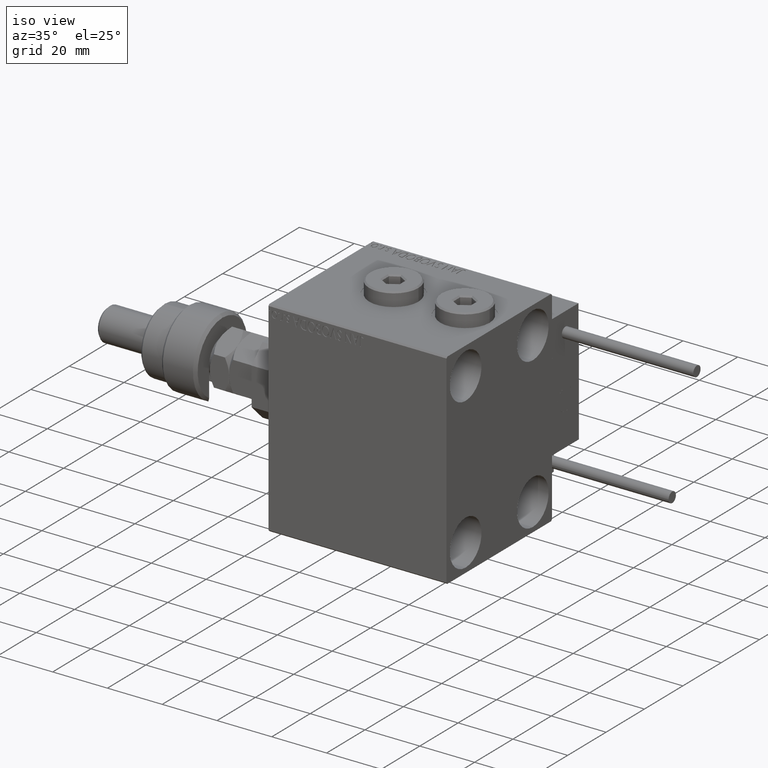
[diagram: clean part render]
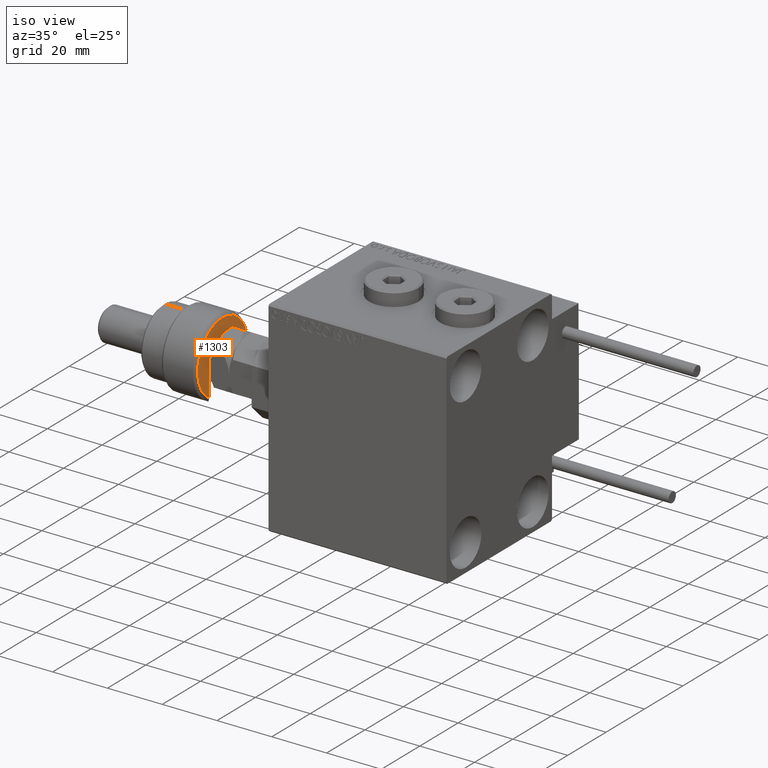
[diagram: same view with one face highlighted and labeled with its STEP entity id]
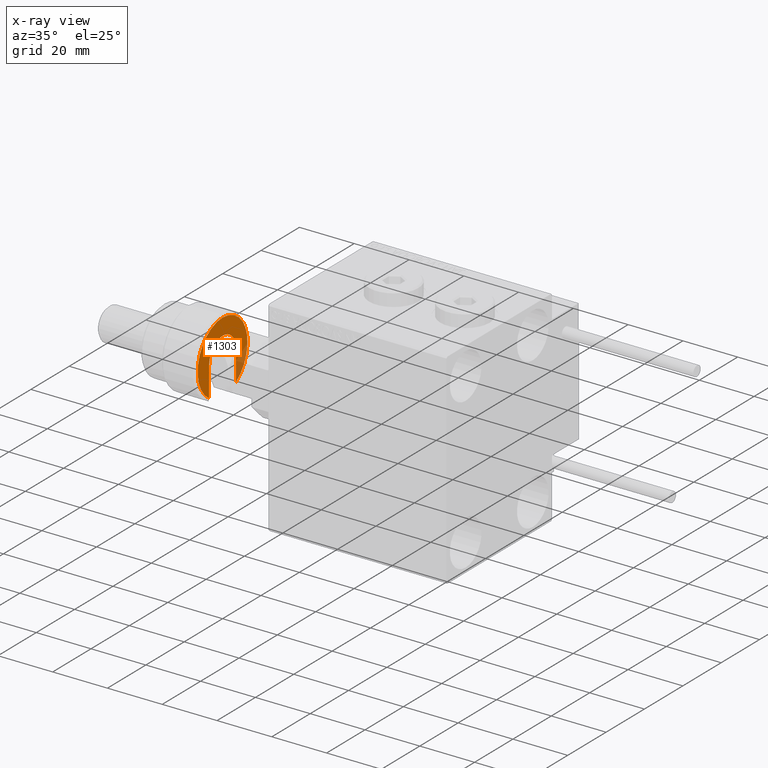
[diagram: x-ray of the same camera — body ghosted, the highlighted face saturated]
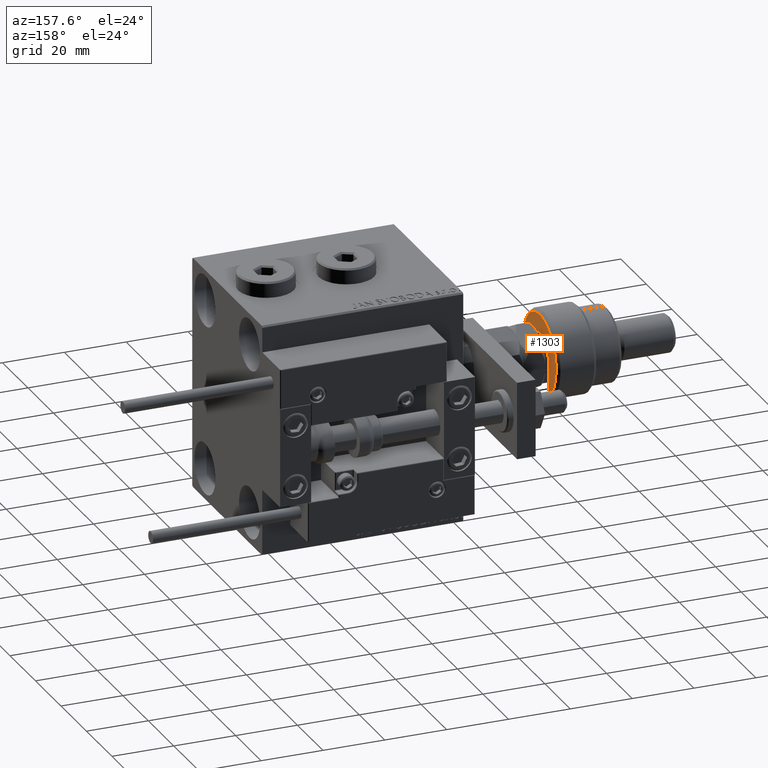
[diagram: same view with one face highlighted and labeled with its STEP entity id]
A machine part, iso view. The second image highlights one B-rep face of the part: STEP entity #1303.
The next image is the same camera in x-ray: the body ghosted, the highlighted face saturated — about 12% of this face is hidden behind the body in this view.
A second angle (auxiliary view) of the same face is appended — the face is thin or edge-on in the first view.
In plain terms, the highlighted planar face has unit normal (-1, 0, 0).
Its self-contained STEP definition (entity closure, byte-faithful):
#922 = CARTESIAN_POINT ( 'NONE',  ( 0.000000000000000000, 0.000000000000000000, 0.000000000000000000 ) ) ;
#1303 = ADVANCED_FACE ( 'NONE', ( #11438 ), #49019, .F. ) ;
#2015 = ORIENTED_EDGE ( 'NONE', *, *, #4010, .T. ) ;
#3674 = EDGE_CURVE ( 'NONE', #44960, #30648, #11032, .T. ) ;
#4010 = EDGE_CURVE ( 'NONE', #23486, #13555, #35587, .T. ) ;
#4116 = CARTESIAN_POINT ( 'NONE',  ( 0.000000000000000000, -7.000000000000007994, 0.000000000000000000 ) ) ;
#4891 = EDGE_CURVE ( 'NONE', #13555, #44960, #20782, .T. ) ;
#7927 = ORIENTED_EDGE ( 'NONE', *, *, #33913, .T. ) ;
#10903 = AXIS2_PLACEMENT_3D ( 'NONE', #48746, #48469, #44367 ) ;
#11032 = CIRCLE ( 'NONE', #50460, 12.99999999999997868 ) ;
#11438 = FACE_OUTER_BOUND ( 'NONE', #42994, .T. ) ;
#13555 = VERTEX_POINT ( 'NONE', #28711 ) ;
#17074 = DIRECTION ( 'NONE',  ( 1.000000000000000000, 0.000000000000000000, 0.000000000000000000 ) ) ;
#17199 = VECTOR ( 'NONE', #37777, 1000.000000000000000 ) ;
#17733 = DIRECTION ( 'NONE',  ( 1.000000000000000000, 0.000000000000000000, 0.000000000000000000 ) ) ;
#20662 = CARTESIAN_POINT ( 'NONE',  ( 0.000000000000000000, -7.000000000000007994, 0.000000000000000000 ) ) ;
#20782 = LINE ( 'NONE', #50673, #17199 ) ;
#21572 = ORIENTED_EDGE ( 'NONE', *, *, #3674, .T. ) ;
#22066 = DIRECTION ( 'NONE',  ( 1.000000000000000000, 0.000000000000000000, 0.000000000000000000 ) ) ;
#23486 = VERTEX_POINT ( 'NONE', #4116 ) ;
#25511 = CARTESIAN_POINT ( 'NONE',  ( 0.000000000000000000, 0.000000000000000000, 0.000000000000000000 ) ) ;
#25651 = VERTEX_POINT ( 'NONE', #53304 ) ;
#27522 = CIRCLE ( 'NONE', #32025, 12.99999999999997868 ) ;
#28711 = CARTESIAN_POINT ( 'NONE',  ( 0.000000000000000000, 7.000000000000007994, 0.000000000000000000 ) ) ;
#30648 = VERTEX_POINT ( 'NONE', #48604 ) ;
#31205 = AXIS2_PLACEMENT_3D ( 'NONE', #922, #46740, #22066 ) ;
#32025 = AXIS2_PLACEMENT_3D ( 'NONE', #42708, #50406, #17733 ) ;
#33219 = VECTOR ( 'NONE', #17074, 1000.000000000000000 ) ;
#33913 = EDGE_CURVE ( 'NONE', #30648, #25651, #27522, .T. ) ;
#35587 = CIRCLE ( 'NONE', #31205, 7.000000000000007994 ) ;
#37777 = DIRECTION ( 'NONE',  ( -1.000000000000000000, 0.000000000000000000, 0.000000000000000000 ) ) ;
#37836 = DIRECTION ( 'NONE',  ( -0.000000000000000000, -0.000000000000000000, -1.000000000000000000 ) ) ;
#39306 = CARTESIAN_POINT ( 'NONE',  ( -10.95445115010329218, 7.000000000000007994, 0.000000000000000000 ) ) ;
#42225 = DIRECTION ( 'NONE',  ( 1.000000000000000000, 0.000000000000000000, 0.000000000000000000 ) ) ;
#42708 = CARTESIAN_POINT ( 'NONE',  ( 0.000000000000000000, 0.000000000000000000, 0.000000000000000000 ) ) ;
#42994 = EDGE_LOOP ( 'NONE', ( #21572, #7927, #48139, #2015, #46575 ) ) ;
#44367 = DIRECTION ( 'NONE',  ( 1.000000000000000000, 0.000000000000000000, -0.000000000000000000 ) ) ;
#44960 = VERTEX_POINT ( 'NONE', #39306 ) ;
#46575 = ORIENTED_EDGE ( 'NONE', *, *, #4891, .T. ) ;
#46740 = DIRECTION ( 'NONE',  ( 0.000000000000000000, 0.000000000000000000, 1.000000000000000000 ) ) ;
#47799 = EDGE_CURVE ( 'NONE', #25651, #23486, #50013, .T. ) ;
#48139 = ORIENTED_EDGE ( 'NONE', *, *, #47799, .T. ) ;
#48469 = DIRECTION ( 'NONE',  ( 0.000000000000000000, 0.000000000000000000, 1.000000000000000000 ) ) ;
#48604 = CARTESIAN_POINT ( 'NONE',  ( 12.99999999999998046, 0.000000000000000000, 0.000000000000000000 ) ) ;
#48746 = CARTESIAN_POINT ( 'NONE',  ( 0.000000000000000000, 0.000000000000000000, 0.000000000000000000 ) ) ;
#49019 = PLANE ( 'NONE',  #10903 ) ;
#50013 = LINE ( 'NONE', #20662, #33219 ) ;
#50406 = DIRECTION ( 'NONE',  ( -0.000000000000000000, -0.000000000000000000, -1.000000000000000000 ) ) ;
#50460 = AXIS2_PLACEMENT_3D ( 'NONE', #25511, #37836, #42225 ) ;
#50673 = CARTESIAN_POINT ( 'NONE',  ( 0.000000000000000000, 7.000000000000007994, 0.000000000000000000 ) ) ;
#53304 = CARTESIAN_POINT ( 'NONE',  ( -10.95445115010329218, -7.000000000000007994, 0.000000000000000000 ) ) ;